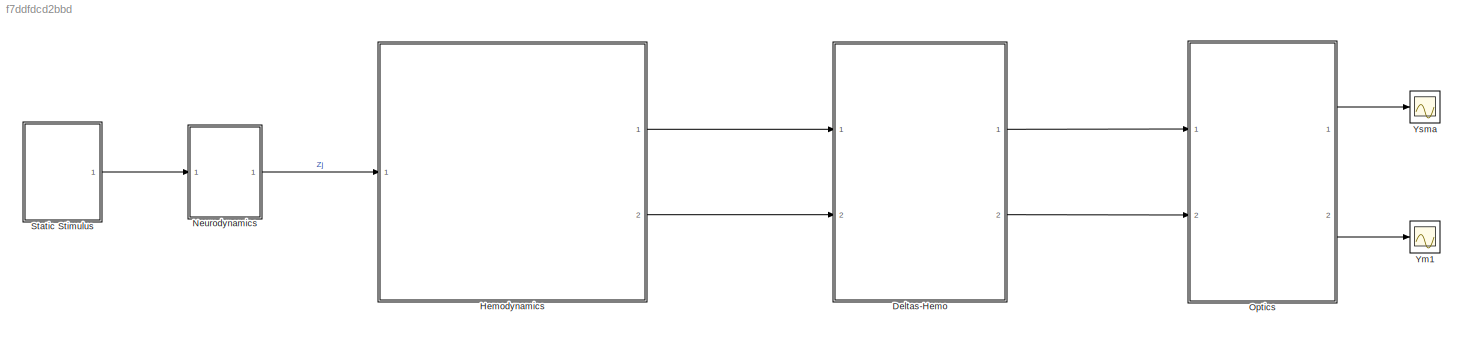
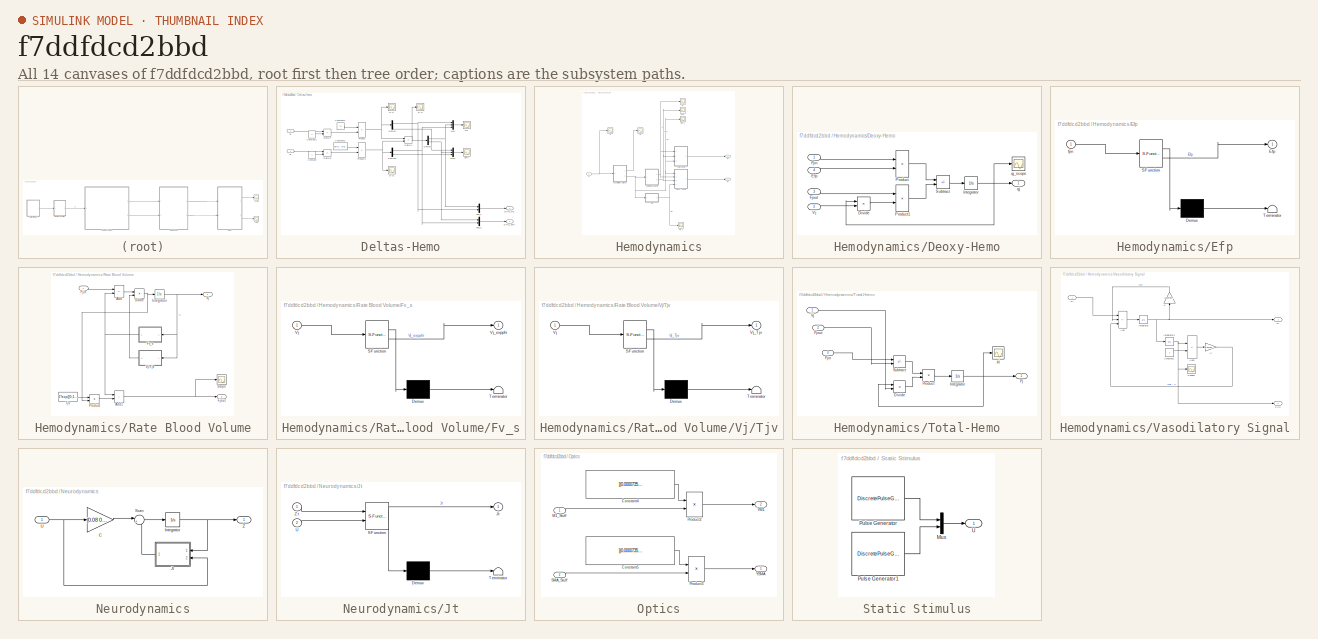
[diagram: thumbnail index - all 14 canvases of the model, root first then tree order]
MODEL slx_f7ddfdcd2bbd
KIND model
CONFIG AbsTol = auto
CONFIG EnableMultiTasking = off
CONFIG FixedStep = auto
CONFIG MaxStep = auto
CONFIG MinStep = auto
CONFIG RelTol = 1e-3
CONFIG SampleTimeConstraint = Unconstrained
CONFIG SolverName = VariableStepAuto
CONFIG StartTime = 0.0
CONFIG StopTime = 60
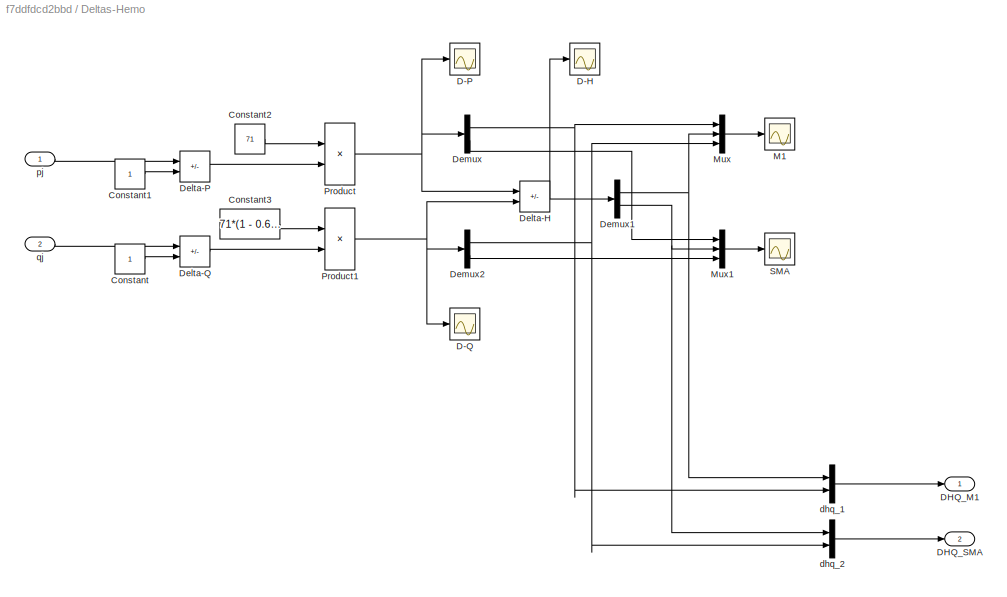
BLOCK [SubSystem] Deltas-Hemo
  Ports = [2, 2]
  RequestExecContextInheritance = off
BLOCK [Constant] Deltas-Hemo/Constant
BLOCK [Constant] Deltas-Hemo/Constant1
BLOCK [Constant] Deltas-Hemo/Constant2
  Value = 71
BLOCK [Constant] Deltas-Hemo/Constant3
  Value = 71*(1 - 0.65)
BLOCK [Scope] Deltas-Hemo/D-H
  Floating = off
  NumInputPorts = 1
  Ports = [1]
  ScopeSpecificationString = Simulink.scopes.TimeScopeBlockCfg('CurrentConfiguration', extmgr.ConfigurationSet(extmgr.Configuration('Core','General UI',true),extmgr.Configuration('Core','Source UI',true),extmgr.Configuration('Sources','WiredSimulink',true,'DataLoggingVariableName','ScopeData7'),extmgr.Configuration('Visuals','Time Domain',true,'SerializedDisplays',{struct('MinYLimReal','-2.91276','MaxYLimReal','17.16126','YLa...<+1449ch>
BLOCK [Scope] Deltas-Hemo/D-P
  Floating = off
  NumInputPorts = 1
  Ports = [1]
  ScopeSpecificationString = Simulink.scopes.TimeScopeBlockCfg('CurrentConfiguration', extmgr.ConfigurationSet(extmgr.Configuration('Core','General UI',true),extmgr.Configuration('Core','Source UI',true),extmgr.Configuration('Sources','WiredSimulink',true,'DataLoggingVariableName','ScopeData5'),extmgr.Configuration('Visuals','Time Domain',true,'SerializedDisplays',{struct('MinYLimReal','-2.54989','MaxYLimReal','15.75385','YLa...<+1449ch>
BLOCK [Scope] Deltas-Hemo/D-Q
  Floating = off
  NumInputPorts = 1
  Ports = [1]
  ScopeSpecificationString = Simulink.scopes.TimeScopeBlockCfg('CurrentConfiguration', extmgr.ConfigurationSet(extmgr.Configuration('Core','General UI',true),extmgr.Configuration('Core','Source UI',true),extmgr.Configuration('Sources','WiredSimulink',true,'DataLoggingVariableName','ScopeData6'),extmgr.Configuration('Visuals','Time Domain',true,'SerializedDisplays',{struct('MinYLimReal','-1.63975','MaxYLimReal','0.38869','YLab...<+1447ch>
BLOCK [Outport] Deltas-Hemo/DHQ_M1
BLOCK [Outport] Deltas-Hemo/DHQ_SMA
  Port = 2
BLOCK [Sum] Deltas-Hemo/Delta-H
  IconShape = rectangular
  Inputs = +-
  Ports = [2, 1]
BLOCK [Sum] Deltas-Hemo/Delta-P
  IconShape = rectangular
  Inputs = +-
  Ports = [2, 1]
BLOCK [Sum] Deltas-Hemo/Delta-Q
  IconShape = rectangular
  Inputs = +-
  Ports = [2, 1]
BLOCK [Demux] Deltas-Hemo/Demux
  Outputs = 2
  Ports = [1, 2]
BLOCK [Demux] Deltas-Hemo/Demux1
  Outputs = 2
  Ports = [1, 2]
BLOCK [Demux] Deltas-Hemo/Demux2
  Outputs = 2
  Ports = [1, 2]
BLOCK [Scope] Deltas-Hemo/M1
  Floating = off
  NumInputPorts = 1
  Ports = [1]
  ScopeSpecificationString = Simulink.scopes.TimeScopeBlockCfg('CurrentConfiguration', extmgr.ConfigurationSet(extmgr.Configuration('Core','General UI',true),extmgr.Configuration('Core','Source UI',true),extmgr.Configuration('Sources','WiredSimulink',true,'DataLoggingVariableName','ScopeData8'),extmgr.Configuration('Visuals','Time Domain',true,'SerializedDisplays',{struct('MinYLimReal','-2.52845','MaxYLimReal','8.38698','YLab...<+1767ch>
BLOCK [Mux] Deltas-Hemo/Mux
  DisplayOption = bar
  Inputs = 3
  Ports = [3, 1]
BLOCK [Mux] Deltas-Hemo/Mux1
  DisplayOption = bar
  Inputs = 3
  Ports = [3, 1]
BLOCK [Product] Deltas-Hemo/Product
  Ports = [2, 1]
BLOCK [Product] Deltas-Hemo/Product1
  Ports = [2, 1]
BLOCK [Scope] Deltas-Hemo/SMA
  Floating = off
  NumInputPorts = 1
  Ports = [1]
  ScopeSpecificationString = Simulink.scopes.TimeScopeBlockCfg('CurrentConfiguration', extmgr.ConfigurationSet(extmgr.Configuration('Core','General UI',true),extmgr.Configuration('Core','Source UI',true),extmgr.Configuration('Sources','WiredSimulink',true,'DataLoggingVariableName','ScopeData9'),extmgr.Configuration('Visuals','Time Domain',true,'SerializedDisplays',{struct('MinYLimReal','-3.32639','MaxYLimReal','17.20722','YLa...<+1772ch>
BLOCK [Mux] Deltas-Hemo/dhq_1
  DisplayOption = bar
  Inputs = 2
  Ports = [2, 1]
BLOCK [Mux] Deltas-Hemo/dhq_2
  DisplayOption = bar
  Inputs = 2
  Ports = [2, 1]
BLOCK [Inport] Deltas-Hemo/pj
BLOCK [Inport] Deltas-Hemo/qj
  Port = 2
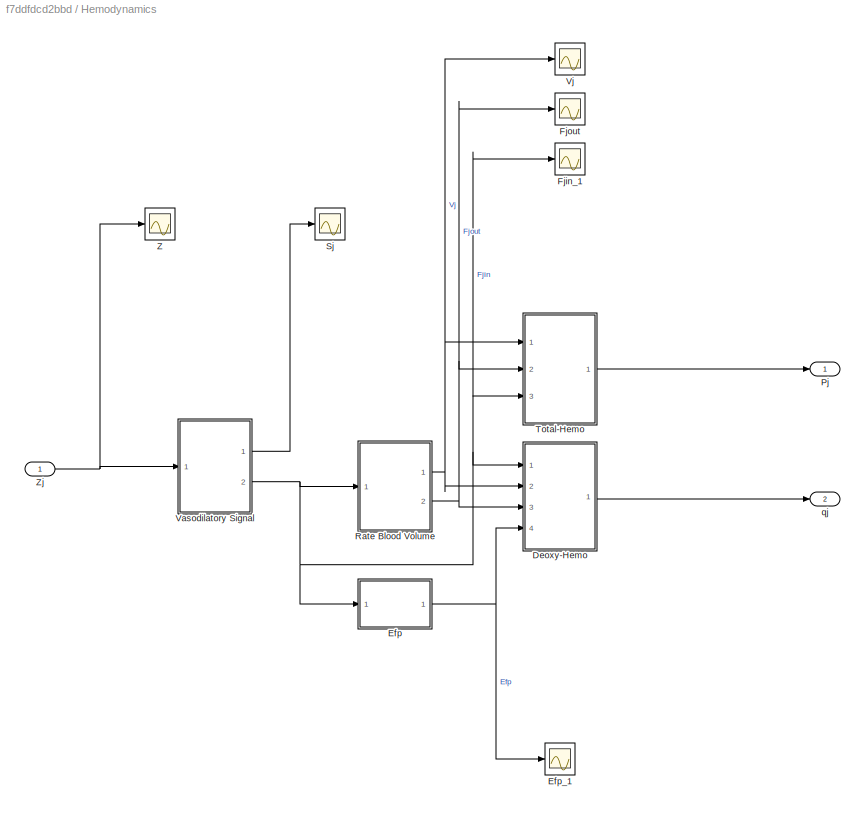
BLOCK [SubSystem] Hemodynamics
  Ports = [1, 2]
  RequestExecContextInheritance = off
BLOCK [SubSystem] Hemodynamics/Deoxy-Hemo
  Ports = [4, 1]
  RequestExecContextInheritance = off
BLOCK [Product] Hemodynamics/Deoxy-Hemo/Divide
  Inputs = */
  Ports = [2, 1]
BLOCK [Inport] Hemodynamics/Deoxy-Hemo/Efp
  Port = 4
BLOCK [Inport] Hemodynamics/Deoxy-Hemo/Fjin
BLOCK [Inport] Hemodynamics/Deoxy-Hemo/Fjout
  Port = 3
BLOCK [Integrator] Hemodynamics/Deoxy-Hemo/Integrator
  InitialCondition = exp([0;0])
  Ports = [1, 1]
BLOCK [Product] Hemodynamics/Deoxy-Hemo/Product
  Ports = [2, 1]
BLOCK [Product] Hemodynamics/Deoxy-Hemo/Product1
  Ports = [2, 1]
BLOCK [Sum] Hemodynamics/Deoxy-Hemo/Subtract
  IconShape = rectangular
  Inputs = +-
  Ports = [2, 1]
BLOCK [Inport] Hemodynamics/Deoxy-Hemo/Vj
  Port = 2
BLOCK [Outport] Hemodynamics/Deoxy-Hemo/qj
BLOCK [Scope] Hemodynamics/Deoxy-Hemo/qj_scope
  Floating = off
  NumInputPorts = 1
  Ports = [1]
  ScopeSpecificationString = Simulink.scopes.TimeScopeBlockCfg('CurrentConfiguration', extmgr.ConfigurationSet(extmgr.Configuration('Core','General UI',true),extmgr.Configuration('Core','Source UI',true),extmgr.Configuration('Sources','WiredSimulink',true,'DataLoggingVariableName','ScopeData1'),extmgr.Configuration('Visuals','Time Domain',true,'SerializedDisplays',{struct('MinYLimReal','0.93401','MaxYLimReal','1.01564','YLabe...<+1413ch>
BLOCK [SubSystem] Hemodynamics/Efp
  ErrorFcn = Stateflow.Translate.translate
  PermitHierarchicalResolution = ExplicitOnly
  Ports = [1, 1]
  RequestExecContextInheritance = off
  SFBlockType = MATLAB Function
  TreatAsAtomicUnit = on
BLOCK [Demux] Hemodynamics/Efp/ Demux 
  Outputs = 1
  Ports = [1, 1]
BLOCK [S-Function] Hemodynamics/Efp/ SFunction 
  EnableBusSupport = on
  FunctionName = sf_sfun
  PortCounts = [1 2]
  Ports = [1, 2]
  SFcnIsStateOwnerBlock = off
  SFunctionDeploymentMode = off
  Tag = Stateflow S-Function 4
BLOCK [Terminator] Hemodynamics/Efp/ Terminator 
BLOCK [Outport] Hemodynamics/Efp/Efp
BLOCK [Inport] Hemodynamics/Efp/fjin
BLOCK [Scope] Hemodynamics/Efp_1
  Floating = off
  NumInputPorts = 1
  Ports = [1]
  ScopeSpecificationString = Simulink.scopes.TimeScopeBlockCfg('CurrentConfiguration', extmgr.ConfigurationSet(extmgr.Configuration('Core','General UI',true),extmgr.Configuration('Core','Source UI',true),extmgr.Configuration('Sources','WiredSimulink',true,'DataLoggingVariableName','ScopeData7'),extmgr.Configuration('Visuals','Time Domain',true,'SerializedDisplays',{struct('MinYLimReal','0.87934','MaxYLimReal','1.03401','YLabe...<+1399ch>
BLOCK [Scope] Hemodynamics/Fjin_1
  Floating = off
  NumInputPorts = 1
  Ports = [1]
  ScopeSpecificationString = Simulink.scopes.TimeScopeBlockCfg('CurrentConfiguration', extmgr.ConfigurationSet(extmgr.Configuration('Core','General UI',true),extmgr.Configuration('Core','Source UI',true),extmgr.Configuration('Sources','WiredSimulink',true,'DataLoggingVariableName','ScopeData6'),extmgr.Configuration('Visuals','Time Domain',true,'SerializedDisplays',{struct('MinYLimReal','0.9571','MaxYLimReal','1.16391','YLabel...<+1398ch>
BLOCK [Scope] Hemodynamics/Fjout
  Floating = off
  NumInputPorts = 1
  Ports = [1]
  ScopeSpecificationString = Simulink.scopes.TimeScopeBlockCfg('CurrentConfiguration', extmgr.ConfigurationSet(extmgr.Configuration('Core','General UI',true),extmgr.Configuration('Core','Source UI',true),extmgr.Configuration('Sources','WiredSimulink',true,'DataLoggingVariableName','ScopeData5'),extmgr.Configuration('Visuals','Time Domain',true,'SerializedDisplays',{struct('MinYLimReal','0.96417','MaxYLimReal','1.14994','YLabe...<+1405ch>
BLOCK [Outport] Hemodynamics/Pj
BLOCK [SubSystem] Hemodynamics/Rate Blood Volume
  Ports = [1, 2]
  RequestExecContextInheritance = off
BLOCK [Sum] Hemodynamics/Rate Blood Volume/Add
  IconShape = rectangular
  Inputs = +-
  Ports = [2, 1]
BLOCK [Sum] Hemodynamics/Rate Blood Volume/Add1
  IconShape = rectangular
  Ports = [2, 1]
BLOCK [Product] Hemodynamics/Rate Blood Volume/Divide
  Inputs = */
  Ports = [2, 1]
BLOCK [Inport] Hemodynamics/Rate Blood Volume/Fjin
BLOCK [Outport] Hemodynamics/Rate Blood Volume/Fjout
  Port = 2
BLOCK [SubSystem] Hemodynamics/Rate Blood Volume/Fv_s
  ErrorFcn = Stateflow.Translate.translate
  PermitHierarchicalResolution = ExplicitOnly
  Ports = [1, 1]
  RequestExecContextInheritance = off
  SFBlockType = MATLAB Function
  TreatAsAtomicUnit = on
BLOCK [Demux] Hemodynamics/Rate Blood Volume/Fv_s/ Demux 
  Outputs = 1
  Ports = [1, 1]
BLOCK [S-Function] Hemodynamics/Rate Blood Volume/Fv_s/ SFunction 
  EnableBusSupport = on
  FunctionName = sf_sfun
  PortCounts = [1 2]
  Ports = [1, 2]
  SFcnIsStateOwnerBlock = off
  SFunctionDeploymentMode = off
  Tag = Stateflow S-Function 3
BLOCK [Terminator] Hemodynamics/Rate Blood Volume/Fv_s/ Terminator 
BLOCK [Inport] Hemodynamics/Rate Blood Volume/Fv_s/Vj
BLOCK [Outport] Hemodynamics/Rate Blood Volume/Fv_s/Vj_expphi
BLOCK [Integrator] Hemodynamics/Rate Blood Volume/Integrator
  InitialCondition = exp([0;0])
  Ports = [1, 1]
BLOCK [Product] Hemodynamics/Rate Blood Volume/Product
  Ports = [2, 1]
BLOCK [Scope] Hemodynamics/Rate Blood Volume/Scope
  Floating = off
  NumInputPorts = 1
  Ports = [1]
  ScopeSpecificationString = Simulink.scopes.TimeScopeBlockCfg('CurrentConfiguration', extmgr.ConfigurationSet(extmgr.Configuration('Core','General UI',true),extmgr.Configuration('Core','Source UI',true),extmgr.Configuration('Sources','WiredSimulink',true,'DataLoggingVariableName','ScopeData2'),extmgr.Configuration('Visuals','Time Domain',true,'SerializedDisplays',{struct('MinYLimReal','0.96417','MaxYLimReal','1.14994','YLabe...<+1372ch>
BLOCK [Constant] Hemodynamics/Rate Blood Volume/Tjv
  Value = 2*exp([0;1])
BLOCK [Outport] Hemodynamics/Rate Blood Volume/Vj
BLOCK [SubSystem] Hemodynamics/Rate Blood Volume/Vj//Tjv
  ErrorFcn = Stateflow.Translate.translate
  PermitHierarchicalResolution = ExplicitOnly
  Ports = [1, 1]
  RequestExecContextInheritance = off
  SFBlockType = MATLAB Function
  TreatAsAtomicUnit = on
BLOCK [Demux] Hemodynamics/Rate Blood Volume/Vj//Tjv/ Demux 
  Outputs = 1
  Ports = [1, 1]
BLOCK [S-Function] Hemodynamics/Rate Blood Volume/Vj//Tjv/ SFunction 
  EnableBusSupport = on
  FunctionName = sf_sfun
  PortCounts = [1 2]
  Ports = [1, 2]
  SFcnIsStateOwnerBlock = off
  SFunctionDeploymentMode = off
  Tag = Stateflow S-Function 1
BLOCK [Terminator] Hemodynamics/Rate Blood Volume/Vj//Tjv/ Terminator 
BLOCK [Inport] Hemodynamics/Rate Blood Volume/Vj//Tjv/Vj
BLOCK [Outport] Hemodynamics/Rate Blood Volume/Vj//Tjv/Vj_Tjv
BLOCK [Scope] Hemodynamics/Sj
  Floating = off
  NumInputPorts = 1
  Ports = [1]
  ScopeSpecificationString = Simulink.scopes.TimeScopeBlockCfg('CurrentConfiguration', extmgr.ConfigurationSet(extmgr.Configuration('Core','General UI',true),extmgr.Configuration('Core','Source UI',true),extmgr.Configuration('Sources','WiredSimulink',true,'DataLoggingVariableName','ScopeData1'),extmgr.Configuration('Visuals','Time Domain',true,'SerializedDisplays',{struct('MinYLimReal','-0.05466','MaxYLimReal','0.05013','YLab...<+1437ch>
BLOCK [SubSystem] Hemodynamics/Total-Hemo
  Ports = [3, 1]
  RequestExecContextInheritance = off
BLOCK [Product] Hemodynamics/Total-Hemo/Divide
  Inputs = */
  Ports = [2, 1]
BLOCK [Inport] Hemodynamics/Total-Hemo/Fjin
  Port = 3
BLOCK [Inport] Hemodynamics/Total-Hemo/Fjout
  Port = 2
BLOCK [Integrator] Hemodynamics/Total-Hemo/Integrator
  InitialCondition = exp([0;0])
  Ports = [1, 1]
BLOCK [Outport] Hemodynamics/Total-Hemo/Pj
BLOCK [Product] Hemodynamics/Total-Hemo/Product
  Ports = [2, 1]
BLOCK [Sum] Hemodynamics/Total-Hemo/Subtract
  IconShape = rectangular
  Inputs = +-
  Ports = [2, 1]
BLOCK [Inport] Hemodynamics/Total-Hemo/Vj
BLOCK [Scope] Hemodynamics/Total-Hemo/pj
  Floating = off
  NumInputPorts = 1
  Ports = [1]
  ScopeSpecificationString = Simulink.scopes.TimeScopeBlockCfg('CurrentConfiguration', extmgr.ConfigurationSet(extmgr.Configuration('Core','General UI',true),extmgr.Configuration('Core','Source UI',true),extmgr.Configuration('Sources','WiredSimulink',true,'DataLoggingVariableName','ScopeData2'),extmgr.Configuration('Visuals','Time Domain',true,'SerializedDisplays',{struct('MinYLimReal','0.96409','MaxYLimReal','1.22189','YLabe...<+1413ch>
BLOCK [SubSystem] Hemodynamics/Vasodilatory Signal
  Ports = [1, 2]
  RequestExecContextInheritance = off
BLOCK [Sum] Hemodynamics/Vasodilatory Signal/Add
  IconShape = rectangular
  Inputs = +--
  Ports = [3, 1]
BLOCK [Sum] Hemodynamics/Vasodilatory Signal/Add1
  IconShape = rectangular
  Inputs = +-
  Ports = [2, 1]
BLOCK [Constant] Hemodynamics/Vasodilatory Signal/Constant1
BLOCK [Outport] Hemodynamics/Vasodilatory Signal/Fjin
  Port = 2
BLOCK [Integrator] Hemodynamics/Vasodilatory Signal/Integrator
  Ports = [1, 1]
BLOCK [Integrator] Hemodynamics/Vasodilatory Signal/Integrator1
  InitialCondition = exp([0;0])
  Ports = [1, 1]
BLOCK [Gain] Hemodynamics/Vasodilatory Signal/K
  Gain = 0.64*exp([0;0.05])
  NameLocation = right
BLOCK [Scope] Hemodynamics/Vasodilatory Signal/Scope1
  Floating = off
  NumInputPorts = 1
  Ports = [1]
  ScopeSpecificationString = Simulink.scopes.TimeScopeBlockCfg('CurrentConfiguration', extmgr.ConfigurationSet(extmgr.Configuration('Core','General UI',true),extmgr.Configuration('Core','Source UI',true),extmgr.Configuration('Sources','WiredSimulink',true,'DataLoggingVariableName','ScopeData1'),extmgr.Configuration('Visuals','Time Domain',true,'SerializedDisplays',{struct('MinYLimReal','-0.02898','MaxYLimReal','0.08445','YLab...<+1370ch>
BLOCK [Outport] Hemodynamics/Vasodilatory Signal/Sj
BLOCK [Gain] Hemodynamics/Vasodilatory Signal/Yj
  Gain = 0.32*exp([0;0.05])
BLOCK [Inport] Hemodynamics/Vasodilatory Signal/Zj
BLOCK [Scope] Hemodynamics/Vj
  Floating = off
  NumInputPorts = 1
  Ports = [1]
  ScopeSpecificationString = Simulink.scopes.TimeScopeBlockCfg('CurrentConfiguration', extmgr.ConfigurationSet(extmgr.Configuration('Core','General UI',true),extmgr.Configuration('Core','Source UI',true),extmgr.Configuration('Sources','WiredSimulink',true,'DataLoggingVariableName','ScopeData4'),extmgr.Configuration('Visuals','Time Domain',true,'SerializedDisplays',{struct('MinYLimReal','0.98939','MaxYLimReal','1.04444','YLabe...<+1398ch>
BLOCK [Scope] Hemodynamics/Z
  Floating = off
  NumInputPorts = 1
  Ports = [1]
  ScopeSpecificationString = Simulink.scopes.TimeScopeBlockCfg('CurrentConfiguration', extmgr.ConfigurationSet(extmgr.Configuration('Core','General UI',true),extmgr.Configuration('Core','Source UI',true),extmgr.Configuration('Sources','WiredSimulink',true),extmgr.Configuration('Visuals','Time Domain',true,'SerializedDisplays',{struct('MinYLimReal','-0.01058','MaxYLimReal','0.05687','YLabelReal','','MinYLimMag','0.00000','MaxY...<+1331ch>
BLOCK [Inport] Hemodynamics/Zj
BLOCK [Outport] Hemodynamics/qj
  Port = 2
BLOCK [SubSystem] Neurodynamics
  Ports = [1, 1]
  RequestExecContextInheritance = off
BLOCK [Gain] Neurodynamics/C
  Gain = [0.08 0;0.06 0]
  Multiplication = Matrix(K*u)
BLOCK [Integrator] Neurodynamics/Integrator
  Ports = [1, 1]
BLOCK [SubSystem] Neurodynamics/Jt
  ErrorFcn = Stateflow.Translate.translate
  PermitHierarchicalResolution = ExplicitOnly
  Ports = [2, 1]
  RequestExecContextInheritance = off
  SFBlockType = MATLAB Function
  TreatAsAtomicUnit = on
BLOCK [Demux] Neurodynamics/Jt/ Demux 
  Outputs = 1
  Ports = [1, 1]
BLOCK [S-Function] Neurodynamics/Jt/ SFunction 
  EnableBusSupport = on
  FunctionName = sf_sfun
  PortCounts = [2 2]
  Ports = [2, 2]
  SFcnIsStateOwnerBlock = off
  SFunctionDeploymentMode = off
  Tag = Stateflow S-Function 2
BLOCK [Terminator] Neurodynamics/Jt/ Terminator 
BLOCK [Outport] Neurodynamics/Jt/Jt
BLOCK [Inport] Neurodynamics/Jt/U
  Port = 2
BLOCK [Inport] Neurodynamics/Jt/Zt
BLOCK [Sum] Neurodynamics/Sum
  Inputs = |++
  Ports = [2, 1]
BLOCK [Inport] Neurodynamics/U
BLOCK [Outport] Neurodynamics/Z
BLOCK [SubSystem] Optics
  Ports = [2, 2]
  RequestExecContextInheritance = off
BLOCK [Constant] Optics/Constant4
  Value = [(0.00007358252*7.5) (0.0001104714*6.5);(0.0001159306*7.5) (0.00007858993*6.5)]
BLOCK [Constant] Optics/Constant5
  Value = [(0.00007358252*7.5) (0.0001104714*6.5);(0.0001159306*7.5) (0.00007858993*6.5)]
BLOCK [Inport] Optics/M1_Stuff
BLOCK [Product] Optics/Product2
  Multiplication = Matrix(*)
  Ports = [2, 1]
BLOCK [Product] Optics/Product3
  Multiplication = Matrix(*)
  Ports = [2, 1]
BLOCK [Inport] Optics/SMA_Stuff
  Port = 2
BLOCK [Outport] Optics/YM1
  Port = 2
BLOCK [Outport] Optics/YSMA
BLOCK [SubSystem] Static Stimulus
  Ports = [0, 1]
  RequestExecContextInheritance = off
BLOCK [Mux] Static Stimulus/Mux
  DisplayOption = bar
  Inputs = 2
  Ports = [2, 1]
BLOCK [DiscretePulseGenerator] Static Stimulus/Pulse Generator
  Period = 30
  Ports = [0, 1]
  PulseWidth = 5
BLOCK [DiscretePulseGenerator] Static Stimulus/Pulse Generator1
  Period = 30
  Ports = [0, 1]
  PulseWidth = 6
BLOCK [Outport] Static Stimulus/U
BLOCK [Scope] Ym1
  Floating = off
  NumInputPorts = 1
  Ports = [1]
  ScopeSpecificationString = Simulink.scopes.TimeScopeBlockCfg('CurrentConfiguration', extmgr.ConfigurationSet(extmgr.Configuration('Core','General UI',true),extmgr.Configuration('Core','Source UI',true),extmgr.Configuration('Sources','WiredSimulink',true,'DataLoggingVariableName','ScopeData12'),extmgr.Configuration('Visuals','Time Domain',true,'SerializedDisplays',{struct('MinYLimReal','-0.00247','MaxYLimReal','0.01065','YLa...<+1413ch>
BLOCK [Scope] Ysma
  Floating = off
  NumInputPorts = 1
  Ports = [1]
  ScopeSpecificationString = Simulink.scopes.TimeScopeBlockCfg('CurrentConfiguration', extmgr.ConfigurationSet(extmgr.Configuration('Core','General UI',true),extmgr.Configuration('Core','Source UI',true),extmgr.Configuration('Sources','WiredSimulink',true,'DataLoggingVariableName','ScopeData13'),extmgr.Configuration('Visuals','Time Domain',true,'SerializedDisplays',{struct('MinYLimReal','-0.00157','MaxYLimReal','0.0141','YLab...<+1409ch>
LINE Deltas-Hemo/Constant1:1 -> Deltas-Hemo/Delta-P:2
LINE Deltas-Hemo/Constant2:1 -> Deltas-Hemo/Product:1
LINE Deltas-Hemo/Constant3:1 -> Deltas-Hemo/Product1:1
LINE Deltas-Hemo/Constant:1 -> Deltas-Hemo/Delta-Q:2
NET Deltas-Hemo/Delta-H:1 -> Deltas-Hemo/D-H:1, Deltas-Hemo/Demux1:1
LINE Deltas-Hemo/Delta-P:1 -> Deltas-Hemo/Product:2
LINE Deltas-Hemo/Delta-Q:1 -> Deltas-Hemo/Product1:2
NET Deltas-Hemo/Demux1:1 -> Deltas-Hemo/Mux:2, Deltas-Hemo/dhq_1:1
NET Deltas-Hemo/Demux1:2 -> Deltas-Hemo/Mux1:2, Deltas-Hemo/dhq_2:1
NET Deltas-Hemo/Demux2:1 -> Deltas-Hemo/Mux:3, Deltas-Hemo/dhq_2:2
LINE Deltas-Hemo/Demux2:2 -> Deltas-Hemo/Mux1:3
NET Deltas-Hemo/Demux:1 -> Deltas-Hemo/Mux:1, Deltas-Hemo/dhq_1:2
LINE Deltas-Hemo/Demux:2 -> Deltas-Hemo/Mux1:1
LINE Deltas-Hemo/Mux1:1 -> Deltas-Hemo/SMA:1
LINE Deltas-Hemo/Mux:1 -> Deltas-Hemo/M1:1
NET Deltas-Hemo/Product1:1 -> Deltas-Hemo/D-Q:1, Deltas-Hemo/Delta-H:2, Deltas-Hemo/Demux2:1
NET Deltas-Hemo/Product:1 -> Deltas-Hemo/D-P:1, Deltas-Hemo/Delta-H:1, Deltas-Hemo/Demux:1
LINE Deltas-Hemo/dhq_1:1 -> Deltas-Hemo/DHQ_M1:1
LINE Deltas-Hemo/dhq_2:1 -> Deltas-Hemo/DHQ_SMA:1
LINE Deltas-Hemo/pj:1 -> Deltas-Hemo/Delta-P:1
LINE Deltas-Hemo/qj:1 -> Deltas-Hemo/Delta-Q:1
LINE Deltas-Hemo:1 -> Optics:1
LINE Deltas-Hemo:2 -> Optics:2
LINE Hemodynamics/Deoxy-Hemo/Divide:1 -> Hemodynamics/Deoxy-Hemo/Product1:2
LINE Hemodynamics/Deoxy-Hemo/Efp:1 -> Hemodynamics/Deoxy-Hemo/Product:2
LINE Hemodynamics/Deoxy-Hemo/Fjin:1 -> Hemodynamics/Deoxy-Hemo/Product:1
LINE Hemodynamics/Deoxy-Hemo/Fjout:1 -> Hemodynamics/Deoxy-Hemo/Product1:1
NET Hemodynamics/Deoxy-Hemo/Integrator:1 -> Hemodynamics/Deoxy-Hemo/Divide:1, Hemodynamics/Deoxy-Hemo/qj:1, Hemodynamics/Deoxy-Hemo/qj_scope:1
LINE Hemodynamics/Deoxy-Hemo/Product1:1 -> Hemodynamics/Deoxy-Hemo/Subtract:2
LINE Hemodynamics/Deoxy-Hemo/Product:1 -> Hemodynamics/Deoxy-Hemo/Subtract:1
LINE Hemodynamics/Deoxy-Hemo/Subtract:1 -> Hemodynamics/Deoxy-Hemo/Integrator:1
LINE Hemodynamics/Deoxy-Hemo/Vj:1 -> Hemodynamics/Deoxy-Hemo/Divide:2
LINE Hemodynamics/Deoxy-Hemo:1 -> Hemodynamics/qj:1
NET Hemodynamics/Efp:1 -> Hemodynamics/Deoxy-Hemo:4, Hemodynamics/Efp_1:1
NET Hemodynamics/Rate Blood Volume/Add1:1 -> Hemodynamics/Rate Blood Volume/Fjout:1, Hemodynamics/Rate Blood Volume/Scope:1
LINE Hemodynamics/Rate Blood Volume/Add:1 -> Hemodynamics/Rate Blood Volume/Divide:1
NET Hemodynamics/Rate Blood Volume/Divide:1 -> Hemodynamics/Rate Blood Volume/Integrator:1, Hemodynamics/Rate Blood Volume/Product:2
LINE Hemodynamics/Rate Blood Volume/Fjin:1 -> Hemodynamics/Rate Blood Volume/Add:1
NET Hemodynamics/Rate Blood Volume/Fv_s:1 -> Hemodynamics/Rate Blood Volume/Add1:1, Hemodynamics/Rate Blood Volume/Add:2
NET Hemodynamics/Rate Blood Volume/Integrator:1 -> Hemodynamics/Rate Blood Volume/Fv_s:1, Hemodynamics/Rate Blood Volume/Vj//Tjv:1, Hemodynamics/Rate Blood Volume/Vj:1
LINE Hemodynamics/Rate Blood Volume/Product:1 -> Hemodynamics/Rate Blood Volume/Add1:2
LINE Hemodynamics/Rate Blood Volume/Tjv:1 -> Hemodynamics/Rate Blood Volume/Product:1
LINE Hemodynamics/Rate Blood Volume/Vj//Tjv:1 -> Hemodynamics/Rate Blood Volume/Divide:2
NET Hemodynamics/Rate Blood Volume:1 -> Hemodynamics/Deoxy-Hemo:2, Hemodynamics/Total-Hemo:1, Hemodynamics/Vj:1
NET Hemodynamics/Rate Blood Volume:2 -> Hemodynamics/Deoxy-Hemo:3, Hemodynamics/Fjout:1, Hemodynamics/Total-Hemo:2
LINE Hemodynamics/Total-Hemo/Divide:1 -> Hemodynamics/Total-Hemo/Product:2
LINE Hemodynamics/Total-Hemo/Fjin:1 -> Hemodynamics/Total-Hemo/Subtract:1
LINE Hemodynamics/Total-Hemo/Fjout:1 -> Hemodynamics/Total-Hemo/Subtract:2
NET Hemodynamics/Total-Hemo/Integrator:1 -> Hemodynamics/Total-Hemo/Divide:1, Hemodynamics/Total-Hemo/Pj:1, Hemodynamics/Total-Hemo/pj:1
LINE Hemodynamics/Total-Hemo/Product:1 -> Hemodynamics/Total-Hemo/Integrator:1
LINE Hemodynamics/Total-Hemo/Subtract:1 -> Hemodynamics/Total-Hemo/Product:1
LINE Hemodynamics/Total-Hemo/Vj:1 -> Hemodynamics/Total-Hemo/Divide:2
LINE Hemodynamics/Total-Hemo:1 -> Hemodynamics/Pj:1
LINE Hemodynamics/Vasodilatory Signal/Add1:1 -> Hemodynamics/Vasodilatory Signal/Yj:1
LINE Hemodynamics/Vasodilatory Signal/Add:1 -> Hemodynamics/Vasodilatory Signal/Integrator:1
LINE Hemodynamics/Vasodilatory Signal/Constant1:1 -> Hemodynamics/Vasodilatory Signal/Add1:2
NET Hemodynamics/Vasodilatory Signal/Integrator1:1 -> Hemodynamics/Vasodilatory Signal/Add1:1, Hemodynamics/Vasodilatory Signal/Fjin:1, Hemodynamics/Vasodilatory Signal/Scope1:1
NET Hemodynamics/Vasodilatory Signal/Integrator:1 -> Hemodynamics/Vasodilatory Signal/Integrator1:1, Hemodynamics/Vasodilatory Signal/K:1, Hemodynamics/Vasodilatory Signal/Sj:1
LINE Hemodynamics/Vasodilatory Signal/K:1 -> Hemodynamics/Vasodilatory Signal/Add:2
LINE Hemodynamics/Vasodilatory Signal/Yj:1 -> Hemodynamics/Vasodilatory Signal/Add:3
LINE Hemodynamics/Vasodilatory Signal/Zj:1 -> Hemodynamics/Vasodilatory Signal/Add:1
LINE Hemodynamics/Vasodilatory Signal:1 -> Hemodynamics/Sj:1
NET Hemodynamics/Vasodilatory Signal:2 -> Hemodynamics/Deoxy-Hemo:1, Hemodynamics/Efp:1, Hemodynamics/Fjin_1:1, Hemodynamics/Rate Blood Volume:1, Hemodynamics/Total-Hemo:3
NET Hemodynamics/Zj:1 -> Hemodynamics/Vasodilatory Signal:1, Hemodynamics/Z:1
LINE Hemodynamics:1 -> Deltas-Hemo:1
LINE Hemodynamics:2 -> Deltas-Hemo:2
LINE Neurodynamics/C:1 -> Neurodynamics/Sum:1
NET Neurodynamics/Integrator:1 -> Neurodynamics/Jt:1, Neurodynamics/Z:1
LINE Neurodynamics/Jt:1 -> Neurodynamics/Sum:2
LINE Neurodynamics/Sum:1 -> Neurodynamics/Integrator:1
NET Neurodynamics/U:1 -> Neurodynamics/C:1, Neurodynamics/Jt:2
LINE Neurodynamics:1 -> Hemodynamics:1
LINE Optics/Constant4:1 -> Optics/Product2:1
LINE Optics/Constant5:1 -> Optics/Product3:1
LINE Optics/M1_Stuff:1 -> Optics/Product2:2
LINE Optics/Product2:1 -> Optics/YM1:1
LINE Optics/Product3:1 -> Optics/YSMA:1
LINE Optics/SMA_Stuff:1 -> Optics/Product3:2
LINE Optics:1 -> Ysma:1
LINE Optics:2 -> Ym1:1
LINE Static Stimulus/Mux:1 -> Static Stimulus/U:1
LINE Static Stimulus/Pulse Generator1:1 -> Static Stimulus/Mux:2
LINE Static Stimulus/Pulse Generator:1 -> Static Stimulus/Mux:1
LINE Static Stimulus:1 -> Neurodynamics:1
note: NET lines group one-source signal fan-out (src -> all destinations, sorted); 1:1 wires keep LINE
CHART Neurodynamics/Jt states=1 transitions=1
  STATE_LABEL 'eML_blk_kernel()'
  STATE_LABEL "SCRIPT:\nfunction Jt = fcn(Zt, U)\n   A = [-0.16 -0.49;-0.02 -0.33];\n   nRegions  = size(A,1);\n   M = size(U,1); %nStimuli\n   simulationLength = size(U,2);\n   B = zeros(2,2,2);\n   B1 = [0 0; 0 0]; %There must be a B per stimulus\n   B2 = [-0.02 -0.77; 0.33 -1.31];\n   B(:,:,1) = B1;\n   B(:,:,2) = B2;\n      assert(M == size(B,3),...\n       'Unexpected number of induced connectivity parameters B.');\n   ...<+291ch>"
CHART Hemodynamics/Rate Blood Volume/Fv_s states=1 transitions=1
  STATE_LABEL 'eML_blk_kernel()'
  STATE_LABEL 'SCRIPT:\nfunction Vj_expphi = fcn(Vj)\nphi = 0.32;\nVj_expphi = Vj.^(1/phi);\n'
CHART Hemodynamics/Efp states=1 transitions=1
  STATE_LABEL 'eML_blk_kernel()'
  STATE_LABEL 'SCRIPT:\nfunction Efp= fcn(fjin)\n\nEfp = (1 - (1 - 0.32).^ (1 ./ fjin))/0.32;\n'
CHART Hemodynamics/Rate Blood Volume/Vj//Tjv states=1 transitions=1
  STATE_LABEL 'eML_blk_kernel()'
  STATE_LABEL 'SCRIPT:\nfunction Vj_Tjv = fcn(Vj)\n    Tjv = 2*exp([0;1]);\n    Tj = 2*exp([0;0.05]);\nVj_Tjv =(Tj.*Tjv.*Vj);\n'
CHART  states=0 transitions=0
CHART  states=0 transitions=0
CHART  states=0 transitions=0
CHART  states=0 transitions=0
